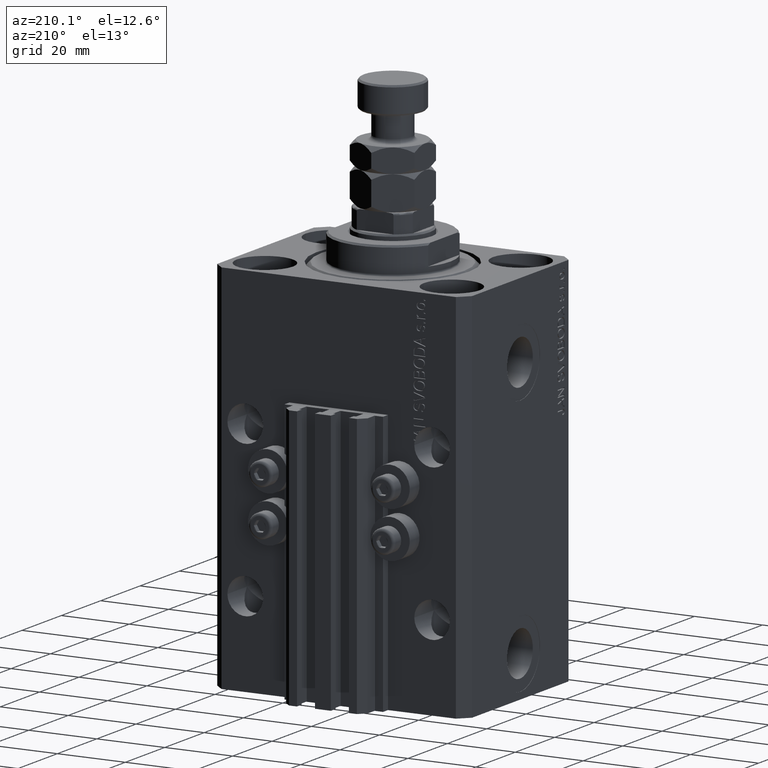
[diagram: clean part render]
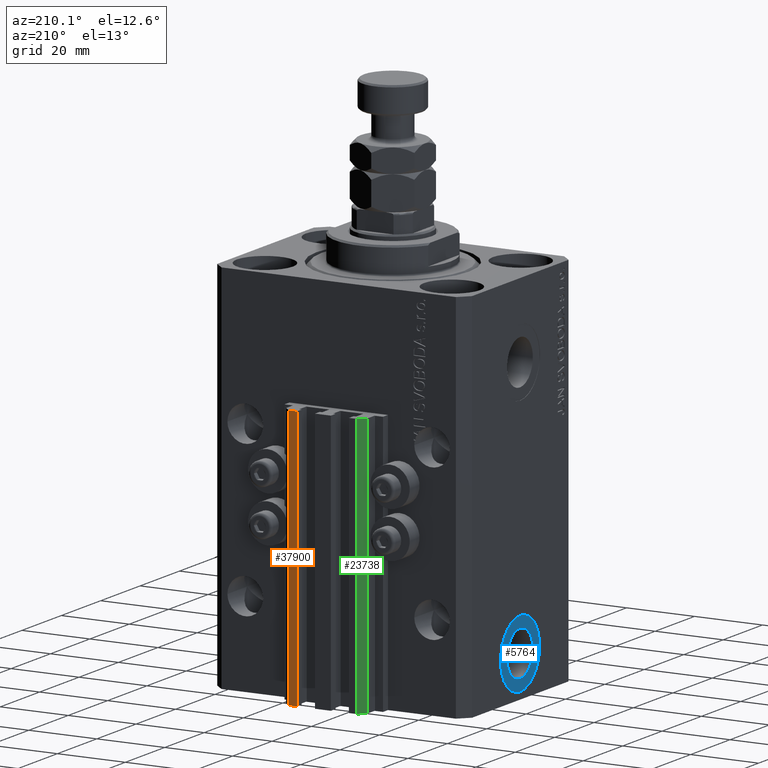
[diagram: same view with three faces highlighted in distinct colors, each labeled with its STEP entity id]
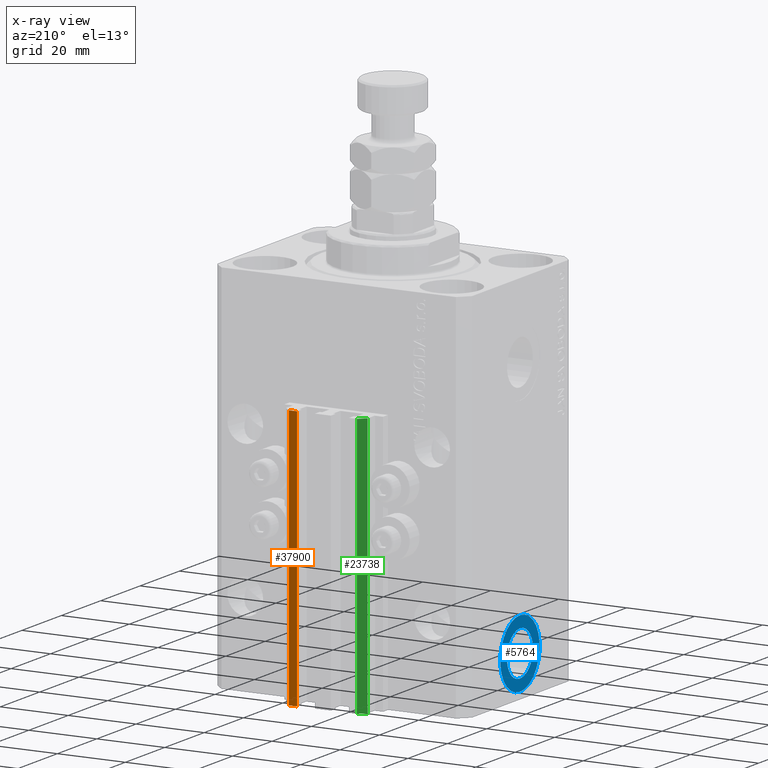
[diagram: x-ray of the same camera — body ghosted, the three highlighted faces saturated]
A machine part, auxiliary view with three faces highlighted in distinct colors.
The next image is the same camera in x-ray (body ghosted, the three faces saturated) — at least one of them is partly hidden behind the body in this view.
Their STEP definitions:

[orange] entity #37900 — the highlighted planar face has unit normal (0, 1, 0).
#3155 = VECTOR ( 'NONE', #27273, 1000.000000000000000 ) ;
#6567 = CARTESIAN_POINT ( 'NONE',  ( 7.649999999999998579, 35.50000000000001421, -110.0000000000000000 ) ) ;
#6822 = CARTESIAN_POINT ( 'NONE',  ( 7.649999999999998579, 35.50000000000001421, -33.00000000000000000 ) ) ;
#7243 = EDGE_LOOP ( 'NONE', ( #43440, #40052, #18259, #44239 ) ) ;
#7474 = DIRECTION ( 'NONE',  ( -1.000000000000000000, 0.000000000000000000, 0.000000000000000000 ) ) ;
#7569 = VERTEX_POINT ( 'NONE', #44235 ) ;
#7627 = EDGE_CURVE ( 'NONE', #30979, #22915, #38046, .T. ) ;
#10358 = CARTESIAN_POINT ( 'NONE',  ( 9.999999999999998224, 35.50000000000001421, -110.0000000000000000 ) ) ;
#11575 = EDGE_CURVE ( 'NONE', #7569, #18238, #12163, .T. ) ;
#11938 = CARTESIAN_POINT ( 'NONE',  ( 9.999999999999998224, 35.50000000000001421, -110.0000000000000000 ) ) ;
#12163 = LINE ( 'NONE', #14896, #41236 ) ;
#12530 = DIRECTION ( 'NONE',  ( 0.000000000000000000, 1.000000000000000000, -0.000000000000000000 ) ) ;
#12806 = AXIS2_PLACEMENT_3D ( 'NONE', #46461, #12530, #27642 ) ;
#14896 = CARTESIAN_POINT ( 'NONE',  ( 9.999999999999998224, 35.50000000000001421, -33.00000000000000000 ) ) ;
#18238 = VERTEX_POINT ( 'NONE', #6822 ) ;
#18259 = ORIENTED_EDGE ( 'NONE', *, *, #7627, .T. ) ;
#21965 = CARTESIAN_POINT ( 'NONE',  ( 7.649999999999998579, 35.50000000000001421, -110.0000000000000000 ) ) ;
#22915 = VERTEX_POINT ( 'NONE', #21965 ) ;
#26403 = DIRECTION ( 'NONE',  ( -1.000000000000000000, 0.000000000000000000, 0.000000000000000000 ) ) ;
#27273 = DIRECTION ( 'NONE',  ( 0.000000000000000000, 0.000000000000000000, 1.000000000000000000 ) ) ;
#27642 = DIRECTION ( 'NONE',  ( 0.000000000000000000, 0.000000000000000000, 1.000000000000000000 ) ) ;
#28208 = EDGE_CURVE ( 'NONE', #22915, #18238, #40524, .T. ) ;
#30979 = VERTEX_POINT ( 'NONE', #10358 ) ;
#31127 = FACE_OUTER_BOUND ( 'NONE', #7243, .T. ) ;
#33867 = VECTOR ( 'NONE', #37043, 1000.000000000000000 ) ;
#35084 = PLANE ( 'NONE',  #12806 ) ;
#37043 = DIRECTION ( 'NONE',  ( 0.000000000000000000, 0.000000000000000000, 1.000000000000000000 ) ) ;
#37900 = ADVANCED_FACE ( 'NONE', ( #31127 ), #35084, .T. ) ;
#38046 = LINE ( 'NONE', #42226, #39484 ) ;
#39484 = VECTOR ( 'NONE', #26403, 1000.000000000000000 ) ;
#40052 = ORIENTED_EDGE ( 'NONE', *, *, #43409, .F. ) ;
#40524 = LINE ( 'NONE', #6567, #33867 ) ;
#41236 = VECTOR ( 'NONE', #7474, 1000.000000000000000 ) ;
#42226 = CARTESIAN_POINT ( 'NONE',  ( 9.999999999999998224, 35.50000000000001421, -110.0000000000000000 ) ) ;
#43409 = EDGE_CURVE ( 'NONE', #30979, #7569, #45134, .T. ) ;
#43440 = ORIENTED_EDGE ( 'NONE', *, *, #11575, .F. ) ;
#44235 = CARTESIAN_POINT ( 'NONE',  ( 9.999999999999998224, 35.50000000000001421, -33.00000000000000000 ) ) ;
#44239 = ORIENTED_EDGE ( 'NONE', *, *, #28208, .T. ) ;
#45134 = LINE ( 'NONE', #11938, #3155 ) ;
#46461 = CARTESIAN_POINT ( 'NONE',  ( 9.999999999999998224, 35.50000000000001421, -110.0000000000000000 ) ) ;

[blue] entity #5764 — the highlighted planar face has unit normal (-1, 0, 0).
#213 = ORIENTED_EDGE ( 'NONE', *, *, #32514, .F. ) ;
#2942 = VERTEX_POINT ( 'NONE', #28736 ) ;
#4130 = FACE_BOUND ( 'NONE', #47080, .T. ) ;
#4293 = DIRECTION ( 'NONE',  ( -1.000000000000000000, 0.000000000000000000, 0.000000000000000000 ) ) ;
#5764 = ADVANCED_FACE ( 'NONE', ( #4130, #19483 ), #30882, .T. ) ;
#10643 = AXIS2_PLACEMENT_3D ( 'NONE', #42390, #20589, #31980 ) ;
#12340 = DIRECTION ( 'NONE',  ( -1.000000000000000000, 0.000000000000000000, 0.000000000000000000 ) ) ;
#12457 = DIRECTION ( 'NONE',  ( 0.000000000000000000, 0.000000000000000000, 1.000000000000000000 ) ) ;
#16572 = EDGE_CURVE ( 'NONE', #40950, #26015, #29625, .T. ) ;
#17366 = CIRCLE ( 'NONE', #46639, 6.580000000000002736 ) ;
#19483 = FACE_OUTER_BOUND ( 'NONE', #28922, .T. ) ;
#19722 = DIRECTION ( 'NONE',  ( 0.000000000000000000, 0.000000000000000000, 1.000000000000000000 ) ) ;
#19803 = AXIS2_PLACEMENT_3D ( 'NONE', #37767, #38009, #33796 ) ;
#19861 = VERTEX_POINT ( 'NONE', #20753 ) ;
#19977 = CARTESIAN_POINT ( 'NONE',  ( -37.39999999999999147, -1.200153863164406187E-14, -98.00000000000000000 ) ) ;
#20583 = AXIS2_PLACEMENT_3D ( 'NONE', #31903, #12340, #27446 ) ;
#20589 = DIRECTION ( 'NONE',  ( -1.000000000000000000, 0.000000000000000000, 0.000000000000000000 ) ) ;
#20753 = CARTESIAN_POINT ( 'NONE',  ( -37.39999999999999147, -1.200153863164406187E-14, -91.42000000000000171 ) ) ;
#24485 = ORIENTED_EDGE ( 'NONE', *, *, #47787, .T. ) ;
#26015 = VERTEX_POINT ( 'NONE', #41897 ) ;
#27446 = DIRECTION ( 'NONE',  ( 0.000000000000000000, 0.000000000000000000, 1.000000000000000000 ) ) ;
#28736 = CARTESIAN_POINT ( 'NONE',  ( -37.39999999999999147, -1.119572103780510441E-14, -104.5800000000000125 ) ) ;
#28922 = EDGE_LOOP ( 'NONE', ( #42404, #24485 ) ) ;
#29322 = CIRCLE ( 'NONE', #20583, 6.580000000000002736 ) ;
#29625 = CIRCLE ( 'NONE', #10643, 9.999999999999994671 ) ;
#30275 = CARTESIAN_POINT ( 'NONE',  ( -37.39999999999999147, -1.200153863164406187E-14, -88.00000000000001421 ) ) ;
#30882 = PLANE ( 'NONE',  #41934 ) ;
#31903 = CARTESIAN_POINT ( 'NONE',  ( -37.39999999999999147, -1.200153863164406187E-14, -98.00000000000000000 ) ) ;
#31980 = DIRECTION ( 'NONE',  ( 0.000000000000000000, 0.000000000000000000, 1.000000000000000000 ) ) ;
#32514 = EDGE_CURVE ( 'NONE', #2942, #19861, #17366, .T. ) ;
#33796 = DIRECTION ( 'NONE',  ( 0.000000000000000000, 0.000000000000000000, 1.000000000000000000 ) ) ;
#34752 = EDGE_CURVE ( 'NONE', #19861, #2942, #29322, .T. ) ;
#35079 = DIRECTION ( 'NONE',  ( -1.000000000000000000, 0.000000000000000000, 0.000000000000000000 ) ) ;
#37713 = ORIENTED_EDGE ( 'NONE', *, *, #34752, .F. ) ;
#37767 = CARTESIAN_POINT ( 'NONE',  ( -37.39999999999999147, -1.200153863164406187E-14, -98.00000000000000000 ) ) ;
#38009 = DIRECTION ( 'NONE',  ( -1.000000000000000000, 0.000000000000000000, 0.000000000000000000 ) ) ;
#38263 = CARTESIAN_POINT ( 'NONE',  ( -37.39999999999999147, -1.200153863164406187E-14, -98.00000000000000000 ) ) ;
#40950 = VERTEX_POINT ( 'NONE', #30275 ) ;
#41897 = CARTESIAN_POINT ( 'NONE',  ( -37.39999999999999147, -1.077689183249671039E-14, -108.0000000000000000 ) ) ;
#41934 = AXIS2_PLACEMENT_3D ( 'NONE', #19977, #35079, #19722 ) ;
#41948 = CIRCLE ( 'NONE', #19803, 9.999999999999994671 ) ;
#42390 = CARTESIAN_POINT ( 'NONE',  ( -37.39999999999999147, -1.200153863164406187E-14, -98.00000000000000000 ) ) ;
#42404 = ORIENTED_EDGE ( 'NONE', *, *, #16572, .T. ) ;
#46639 = AXIS2_PLACEMENT_3D ( 'NONE', #38263, #4293, #12457 ) ;
#47080 = EDGE_LOOP ( 'NONE', ( #37713, #213 ) ) ;
#47787 = EDGE_CURVE ( 'NONE', #26015, #40950, #41948, .T. ) ;

[green] entity #23738 — the highlighted planar face has unit normal (-0.7071, 0.7071, 0).
#755 = CARTESIAN_POINT ( 'NONE',  ( -12.00000000000000000, 33.49999999999998579, -110.0000000000000000 ) ) ;
#1353 = VERTEX_POINT ( 'NONE', #27604 ) ;
#3540 = FACE_OUTER_BOUND ( 'NONE', #20338, .T. ) ;
#4881 = VECTOR ( 'NONE', #19338, 1000.000000000000227 ) ;
#6401 = VECTOR ( 'NONE', #14440, 1000.000000000000000 ) ;
#8461 = AXIS2_PLACEMENT_3D ( 'NONE', #15670, #30783, #18666 ) ;
#8938 = DIRECTION ( 'NONE',  ( 0.000000000000000000, 0.000000000000000000, 1.000000000000000000 ) ) ;
#9160 = CARTESIAN_POINT ( 'NONE',  ( -10.00000000000000000, 35.50000000000000000, -110.0000000000000000 ) ) ;
#11665 = CARTESIAN_POINT ( 'NONE',  ( -10.00000000000000000, 35.50000000000000000, -110.0000000000000000 ) ) ;
#11703 = CARTESIAN_POINT ( 'NONE',  ( -10.00000000000000000, 35.50000000000000000, -110.0000000000000000 ) ) ;
#13148 = EDGE_CURVE ( 'NONE', #22373, #1353, #32625, .T. ) ;
#13576 = VECTOR ( 'NONE', #21471, 1000.000000000000227 ) ;
#14440 = DIRECTION ( 'NONE',  ( 0.000000000000000000, 0.000000000000000000, 1.000000000000000000 ) ) ;
#15670 = CARTESIAN_POINT ( 'NONE',  ( -10.00000000000000000, 35.50000000000000000, -110.0000000000000000 ) ) ;
#18270 = VECTOR ( 'NONE', #8938, 1000.000000000000000 ) ;
#18666 = DIRECTION ( 'NONE',  ( -0.7071067811865460184, -0.7071067811865489050, 0.000000000000000000 ) ) ;
#19338 = DIRECTION ( 'NONE',  ( -0.7071067811865460184, -0.7071067811865490160, 0.000000000000000000 ) ) ;
#20338 = EDGE_LOOP ( 'NONE', ( #23813, #33727, #30346, #28235 ) ) ;
#21471 = DIRECTION ( 'NONE',  ( -0.7071067811865460184, -0.7071067811865490160, 0.000000000000000000 ) ) ;
#22373 = VERTEX_POINT ( 'NONE', #47680 ) ;
#22599 = LINE ( 'NONE', #11703, #6401 ) ;
#23738 = ADVANCED_FACE ( 'NONE', ( #3540 ), #34506, .T. ) ;
#23813 = ORIENTED_EDGE ( 'NONE', *, *, #13148, .F. ) ;
#26771 = LINE ( 'NONE', #11665, #4881 ) ;
#27604 = CARTESIAN_POINT ( 'NONE',  ( -12.00000000000000000, 33.49999999999998579, -33.00000000000000000 ) ) ;
#28235 = ORIENTED_EDGE ( 'NONE', *, *, #48120, .T. ) ;
#29797 = VERTEX_POINT ( 'NONE', #9160 ) ;
#30346 = ORIENTED_EDGE ( 'NONE', *, *, #37234, .T. ) ;
#30743 = LINE ( 'NONE', #755, #18270 ) ;
#30783 = DIRECTION ( 'NONE',  ( -0.7071067811865490160, 0.7071067811865461294, 0.000000000000000000 ) ) ;
#32625 = LINE ( 'NONE', #43774, #13576 ) ;
#33727 = ORIENTED_EDGE ( 'NONE', *, *, #45514, .F. ) ;
#34506 = PLANE ( 'NONE',  #8461 ) ;
#37234 = EDGE_CURVE ( 'NONE', #29797, #47123, #26771, .T. ) ;
#38476 = CARTESIAN_POINT ( 'NONE',  ( -12.00000000000000000, 33.49999999999998579, -110.0000000000000000 ) ) ;
#43774 = CARTESIAN_POINT ( 'NONE',  ( -10.00000000000000000, 35.50000000000000000, -33.00000000000000000 ) ) ;
#45514 = EDGE_CURVE ( 'NONE', #29797, #22373, #22599, .T. ) ;
#47123 = VERTEX_POINT ( 'NONE', #38476 ) ;
#47680 = CARTESIAN_POINT ( 'NONE',  ( -10.00000000000000000, 35.50000000000000000, -33.00000000000000000 ) ) ;
#48120 = EDGE_CURVE ( 'NONE', #47123, #1353, #30743, .T. ) ;